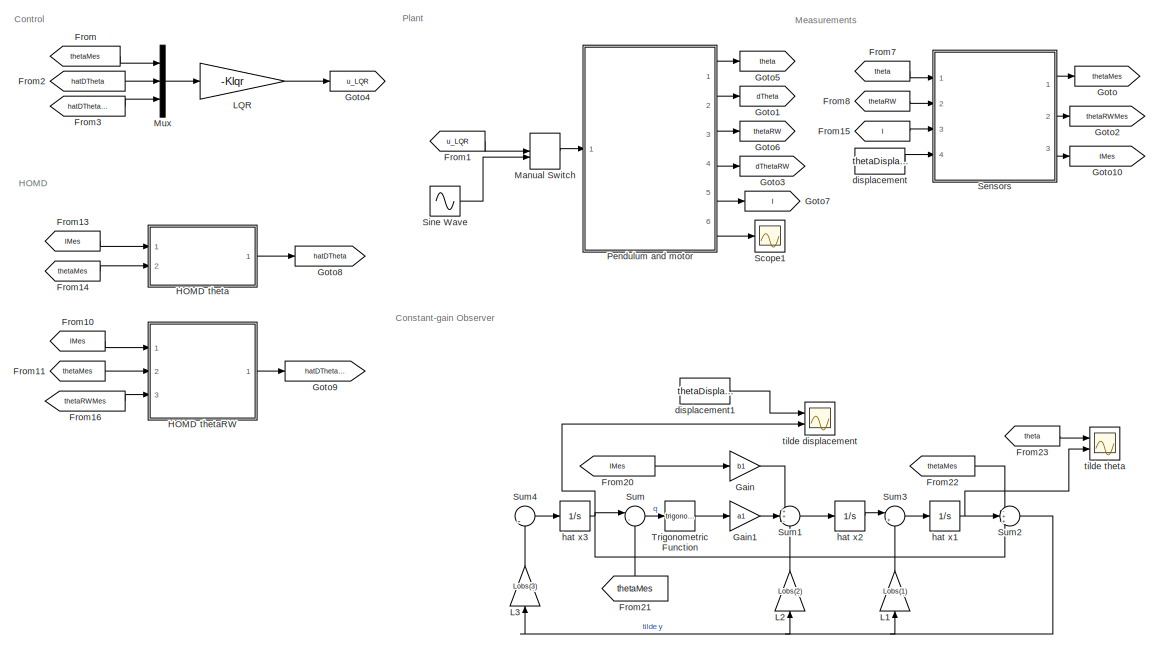
[diagram: root canvas - part 1/2, center side, full height]
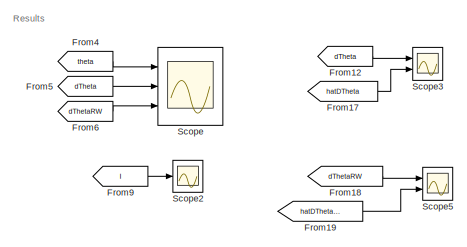
[diagram: root canvas - part 2/2, top right region]
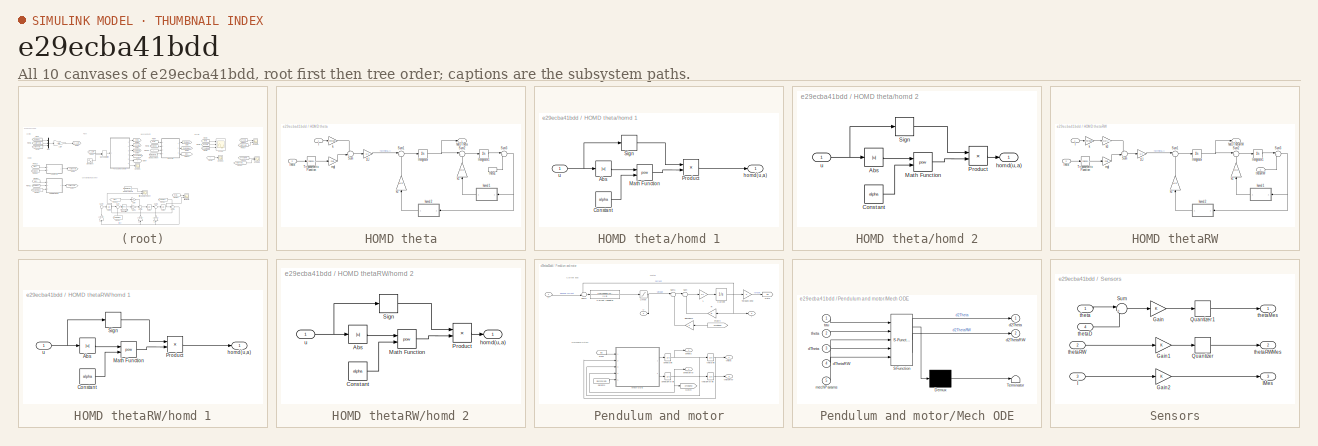
[diagram: thumbnail index - all 10 canvases of the model, root first then tree order]
MODEL slx_e29ecba41bdd
KIND model
CONFIG AbsTol = auto
CONFIG EnableMultiTasking = off
CONFIG FixedStep = auto
CONFIG MaxStep = 0.001
CONFIG MinStep = auto
CONFIG RelTol = 1e-6
CONFIG SampleTimeConstraint = Unconstrained
CONFIG Solver = VariableStepAuto
CONFIG SolverName = VariableStepAuto
CONFIG StartTime = 0.0
CONFIG StopTime = 5
BLOCK [From] From
  GotoTag = thetaMes
BLOCK [From] From1
  GotoTag = u_LQR
BLOCK [From] From10
  GotoTag = IMes
BLOCK [From] From11
  GotoTag = thetaMes
BLOCK [From] From12
  GotoTag = dTheta
BLOCK [From] From13
  GotoTag = IMes
BLOCK [From] From14
  GotoTag = thetaMes
BLOCK [From] From15
  GotoTag = I
BLOCK [From] From16
  GotoTag = thetaRWMes
BLOCK [From] From17
  GotoTag = hatDTheta
BLOCK [From] From18
  GotoTag = dThetaRW
BLOCK [From] From19
  GotoTag = hatDThetaRW
BLOCK [From] From2
  GotoTag = hatDTheta
BLOCK [From] From20
  GotoTag = IMes
BLOCK [From] From21
  GotoTag = thetaMes
BLOCK [From] From22
  GotoTag = thetaMes
BLOCK [From] From23
  GotoTag = theta
BLOCK [From] From3
  GotoTag = hatDThetaRW
BLOCK [From] From4
  GotoTag = theta
BLOCK [From] From5
  GotoTag = dTheta
BLOCK [From] From6
  GotoTag = dThetaRW
BLOCK [From] From7
  GotoTag = theta
BLOCK [From] From8
  GotoTag = thetaRW
BLOCK [From] From9
  GotoTag = I
BLOCK [Gain] Gain
  Gain = b1
  OutDataTypeStr = Inherit: Inherit via internal rule
  ParamDataTypeStr = Inherit: Inherit via internal rule
  SaturateOnIntegerOverflow = off
BLOCK [Gain] Gain1
  Gain = a1
  OutDataTypeStr = Inherit: Inherit via internal rule
  ParamDataTypeStr = Inherit: Inherit via internal rule
  SaturateOnIntegerOverflow = off
BLOCK [Goto] Goto
  GotoTag = thetaMes
BLOCK [Goto] Goto1
  GotoTag = dTheta
BLOCK [Goto] Goto10
  GotoTag = IMes
BLOCK [Goto] Goto2
  GotoTag = thetaRWMes
BLOCK [Goto] Goto3
  GotoTag = dThetaRW
BLOCK [Goto] Goto4
  GotoTag = u_LQR
BLOCK [Goto] Goto5
  GotoTag = theta
BLOCK [Goto] Goto6
  GotoTag = thetaRW
BLOCK [Goto] Goto7
  GotoTag = I
BLOCK [Goto] Goto8
  GotoTag = hatDTheta
BLOCK [Goto] Goto9
  GotoTag = hatDThetaRW
BLOCK [SubSystem] HOMD theta
  Ports = [2, 1]
  RequestExecContextInheritance = off
  Variant = off
BLOCK [Gain] HOMD theta/1//J
  Gain = 1/J
  OutDataTypeStr = Inherit: Inherit via internal rule
  ParamDataTypeStr = Inherit: Inherit via internal rule
  SaturateOnIntegerOverflow = off
BLOCK [Inport] HOMD theta/I
  IconDisplay = Port number
BLOCK [Integrator] HOMD theta/Integrator
  InitialCondition = x0(2)
  Ports = [1, 1]
BLOCK [Integrator] HOMD theta/Integrator1
  InitialCondition = x0(1)
  Ports = [1, 1]
BLOCK [Sum] HOMD theta/Sum
  IconShape = round
  InputSameDT = off
  Inputs = -+
  OutDataTypeStr = Inherit: Inherit via internal rule
  Ports = [2, 1]
  SaturateOnIntegerOverflow = off
BLOCK [Sum] HOMD theta/Sum1
  IconShape = round
  InputSameDT = off
  Inputs = |+-
  OutDataTypeStr = Inherit: Inherit via internal rule
  Ports = [2, 1]
  SaturateOnIntegerOverflow = off
BLOCK [Sum] HOMD theta/Sum2
  IconShape = round
  InputSameDT = off
  Inputs = |+-
  OutDataTypeStr = Inherit: Inherit via internal rule
  Ports = [2, 1]
  SaturateOnIntegerOverflow = off
BLOCK [Sum] HOMD theta/Sum3
  IconShape = round
  InputSameDT = off
  Inputs = |+-
  OutDataTypeStr = Inherit: Inherit via internal rule
  Ports = [2, 1]
  SaturateOnIntegerOverflow = off
BLOCK [Trigonometry] HOMD theta/Trigonometric Function
  Ports = [1, 1]
BLOCK [Outport] HOMD theta/hatDTheta
  IconDisplay = Port number
BLOCK [SubSystem] HOMD theta/homd 1
  Ports = [1, 1]
  RequestExecContextInheritance = off
  Variant = off
BLOCK [Abs] HOMD theta/homd 1/Abs
  SaturateOnIntegerOverflow = off
BLOCK [Constant] HOMD theta/homd 1/Constant
  Value = alpha
BLOCK [Math] HOMD theta/homd 1/Math Function
  Operator = pow
  Ports = [2, 1]
BLOCK [Product] HOMD theta/homd 1/Product
  InputSameDT = off
  OutDataTypeStr = Inherit: Inherit via internal rule
  Ports = [2, 1]
  RndMeth = Floor
  SaturateOnIntegerOverflow = off
BLOCK [Signum] HOMD theta/homd 1/Sign
BLOCK [Outport] HOMD theta/homd 1/homd(u,a)
  IconDisplay = Port number
BLOCK [Inport] HOMD theta/homd 1/u
  IconDisplay = Port number
BLOCK [SubSystem] HOMD theta/homd 2
  Ports = [1, 1]
  RequestExecContextInheritance = off
  Variant = off
BLOCK [Abs] HOMD theta/homd 2/Abs
  SaturateOnIntegerOverflow = off
BLOCK [Constant] HOMD theta/homd 2/Constant
  Value = alpha
BLOCK [Math] HOMD theta/homd 2/Math Function
  Operator = pow
  Ports = [2, 1]
BLOCK [Product] HOMD theta/homd 2/Product
  InputSameDT = off
  OutDataTypeStr = Inherit: Inherit via internal rule
  Ports = [2, 1]
  RndMeth = Floor
  SaturateOnIntegerOverflow = off
BLOCK [Signum] HOMD theta/homd 2/Sign
BLOCK [Outport] HOMD theta/homd 2/homd(u,a)
  IconDisplay = Port number
BLOCK [Inport] HOMD theta/homd 2/u
  IconDisplay = Port number
BLOCK [Gain] HOMD theta/k
  Gain = kTorque
  OutDataTypeStr = Inherit: Inherit via internal rule
  ParamDataTypeStr = Inherit: Inherit via internal rule
  SaturateOnIntegerOverflow = off
BLOCK [Gain] HOMD theta/k1
  Gain = k(1)
  OutDataTypeStr = Inherit: Inherit via internal rule
  ParamDataTypeStr = Inherit: Inherit via internal rule
  SaturateOnIntegerOverflow = off
BLOCK [Gain] HOMD theta/k2
  Gain = k(2)
  OutDataTypeStr = Inherit: Inherit via internal rule
  ParamDataTypeStr = Inherit: Inherit via internal rule
  SaturateOnIntegerOverflow = off
BLOCK [Gain] HOMD theta/mgl
  Gain = mlg
  OutDataTypeStr = Inherit: Inherit via internal rule
  ParamDataTypeStr = Inherit: Inherit via internal rule
  SaturateOnIntegerOverflow = off
BLOCK [Inport] HOMD theta/theta
  IconDisplay = Port number
  Port = 2
BLOCK [InportShadow] HOMD theta/theta1
  IconDisplay = Port number
  Port = 2
BLOCK [SubSystem] HOMD thetaRW
  Ports = [3, 1]
  RequestExecContextInheritance = off
  Variant = off
BLOCK [Gain] HOMD thetaRW/1//J
  Gain = 1/J
  OutDataTypeStr = Inherit: Inherit via internal rule
  ParamDataTypeStr = Inherit: Inherit via internal rule
  SaturateOnIntegerOverflow = off
BLOCK [Inport] HOMD thetaRW/I
  IconDisplay = Port number
BLOCK [Integrator] HOMD thetaRW/Integrator
  InitialCondition = x0(2)
  Ports = [1, 1]
BLOCK [Integrator] HOMD thetaRW/Integrator1
  InitialCondition = x0(1)
  Ports = [1, 1]
BLOCK [Sum] HOMD thetaRW/Sum
  IconShape = round
  InputSameDT = off
  Inputs = +-
  OutDataTypeStr = Inherit: Inherit via internal rule
  Ports = [2, 1]
  SaturateOnIntegerOverflow = off
BLOCK [Sum] HOMD thetaRW/Sum1
  IconShape = round
  InputSameDT = off
  Inputs = |+-
  OutDataTypeStr = Inherit: Inherit via internal rule
  Ports = [2, 1]
  SaturateOnIntegerOverflow = off
BLOCK [Sum] HOMD thetaRW/Sum2
  IconShape = round
  InputSameDT = off
  Inputs = |+-
  OutDataTypeStr = Inherit: Inherit via internal rule
  Ports = [2, 1]
  SaturateOnIntegerOverflow = off
BLOCK [Sum] HOMD thetaRW/Sum3
  IconShape = round
  InputSameDT = off
  Inputs = |+-
  OutDataTypeStr = Inherit: Inherit via internal rule
  Ports = [2, 1]
  SaturateOnIntegerOverflow = off
BLOCK [Trigonometry] HOMD thetaRW/Trigonometric Function
  Ports = [1, 1]
BLOCK [Outport] HOMD thetaRW/hatDThetaRW
  IconDisplay = Port number
BLOCK [SubSystem] HOMD thetaRW/homd 1
  Ports = [1, 1]
  RequestExecContextInheritance = off
  Variant = off
BLOCK [Abs] HOMD thetaRW/homd 1/Abs
  SaturateOnIntegerOverflow = off
BLOCK [Constant] HOMD thetaRW/homd 1/Constant
  Value = alpha
BLOCK [Math] HOMD thetaRW/homd 1/Math Function
  Operator = pow
  Ports = [2, 1]
BLOCK [Product] HOMD thetaRW/homd 1/Product
  InputSameDT = off
  OutDataTypeStr = Inherit: Inherit via internal rule
  Ports = [2, 1]
  RndMeth = Floor
  SaturateOnIntegerOverflow = off
BLOCK [Signum] HOMD thetaRW/homd 1/Sign
BLOCK [Outport] HOMD thetaRW/homd 1/homd(u,a)
  IconDisplay = Port number
BLOCK [Inport] HOMD thetaRW/homd 1/u
  IconDisplay = Port number
BLOCK [SubSystem] HOMD thetaRW/homd 2
  Ports = [1, 1]
  RequestExecContextInheritance = off
  Variant = off
BLOCK [Abs] HOMD thetaRW/homd 2/Abs
  SaturateOnIntegerOverflow = off
BLOCK [Constant] HOMD thetaRW/homd 2/Constant
  Value = alpha
BLOCK [Math] HOMD thetaRW/homd 2/Math Function
  Operator = pow
  Ports = [2, 1]
BLOCK [Product] HOMD thetaRW/homd 2/Product
  InputSameDT = off
  OutDataTypeStr = Inherit: Inherit via internal rule
  Ports = [2, 1]
  RndMeth = Floor
  SaturateOnIntegerOverflow = off
BLOCK [Signum] HOMD thetaRW/homd 2/Sign
BLOCK [Outport] HOMD thetaRW/homd 2/homd(u,a)
  IconDisplay = Port number
BLOCK [Inport] HOMD thetaRW/homd 2/u
  IconDisplay = Port number
BLOCK [Gain] HOMD thetaRW/k
  Gain = kTorque
  OutDataTypeStr = Inherit: Inherit via internal rule
  ParamDataTypeStr = Inherit: Inherit via internal rule
  SaturateOnIntegerOverflow = off
BLOCK [Gain] HOMD thetaRW/k1
  Gain = k(1)
  OutDataTypeStr = Inherit: Inherit via internal rule
  ParamDataTypeStr = Inherit: Inherit via internal rule
  SaturateOnIntegerOverflow = off
BLOCK [Gain] HOMD thetaRW/k2
  Gain = k(2)
  OutDataTypeStr = Inherit: Inherit via internal rule
  ParamDataTypeStr = Inherit: Inherit via internal rule
  SaturateOnIntegerOverflow = off
BLOCK [Gain] HOMD thetaRW/k3
  Gain = (J+Jr)/Jr
  OutDataTypeStr = Inherit: Inherit via internal rule
  ParamDataTypeStr = Inherit: Inherit via internal rule
  SaturateOnIntegerOverflow = off
BLOCK [Gain] HOMD thetaRW/mgl
  Gain = mlg
  OutDataTypeStr = Inherit: Inherit via internal rule
  ParamDataTypeStr = Inherit: Inherit via internal rule
  SaturateOnIntegerOverflow = off
BLOCK [Inport] HOMD thetaRW/theta
  IconDisplay = Port number
  Port = 2
BLOCK [Inport] HOMD thetaRW/thetaRW
  IconDisplay = Port number
  Port = 3
BLOCK [Gain] L1
  Gain = Lobs(1)
  OutDataTypeStr = Inherit: Inherit via internal rule
  ParamDataTypeStr = Inherit: Inherit via internal rule
  SaturateOnIntegerOverflow = off
BLOCK [Gain] L2
  Gain = Lobs(2)
  OutDataTypeStr = Inherit: Inherit via internal rule
  ParamDataTypeStr = Inherit: Inherit via internal rule
  SaturateOnIntegerOverflow = off
BLOCK [Gain] L3
  Gain = Lobs(3)
  OutDataTypeStr = Inherit: Inherit via internal rule
  ParamDataTypeStr = Inherit: Inherit via internal rule
  SaturateOnIntegerOverflow = off
BLOCK [Gain] LQR
  Gain = -Klqr
  Multiplication = Matrix(K*u)
  OutDataTypeStr = Inherit: Inherit via internal rule
  ParamDataTypeStr = Inherit: Inherit via internal rule
  SaturateOnIntegerOverflow = off
BLOCK [ManualSwitch] Manual Switch
BLOCK [Mux] Mux
  DisplayOption = bar
  Inputs = 3
  Ports = [3, 1]
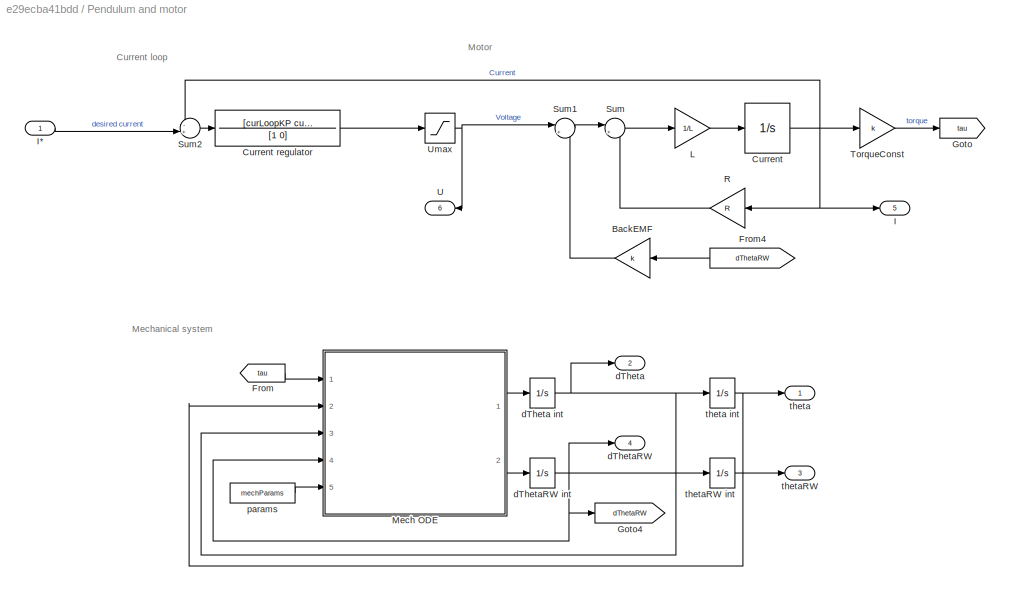
BLOCK [SubSystem] Pendulum and motor
  Ports = [1, 6]
  RequestExecContextInheritance = off
  Variant = off
BLOCK [Gain] Pendulum and motor/BackEMF
  Gain = k
  OutDataTypeStr = Inherit: Inherit via internal rule
  ParamDataTypeStr = Inherit: Inherit via internal rule
  SaturateOnIntegerOverflow = off
BLOCK [Integrator] Pendulum and motor/Current
  Ports = [1, 1]
BLOCK [TransferFcn] Pendulum and motor/Current regulator
  Denominator = [1 0]
  Numerator = [curLoopKP curLoopKI]
BLOCK [From] Pendulum and motor/From
  GotoTag = tau
BLOCK [From] Pendulum and motor/From4
  GotoTag = dThetaRW
BLOCK [Goto] Pendulum and motor/Goto
  GotoTag = tau
BLOCK [Goto] Pendulum and motor/Goto4
  GotoTag = dThetaRW
BLOCK [Outport] Pendulum and motor/I
  IconDisplay = Port number
  Port = 5
BLOCK [Inport] Pendulum and motor/I*
  IconDisplay = Port number
BLOCK [Gain] Pendulum and motor/L
  Gain = 1/L
  OutDataTypeStr = Inherit: Inherit via internal rule
  ParamDataTypeStr = Inherit: Inherit via internal rule
  SaturateOnIntegerOverflow = off
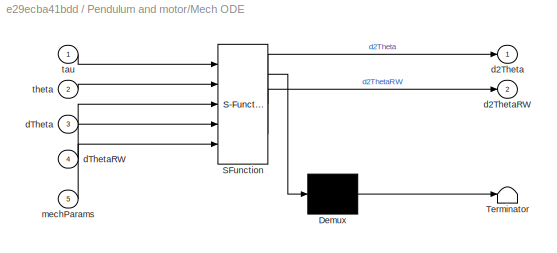
BLOCK [SubSystem] Pendulum and motor/Mech ODE
  ErrorFcn = Stateflow.Translate.translate
  PermitHierarchicalResolution = ExplicitOnly
  Ports = [5, 2]
  RequestExecContextInheritance = off
  SFBlockType = MATLAB Function
  TreatAsAtomicUnit = on
  Variant = off
BLOCK [Demux] Pendulum and motor/Mech ODE/ Demux 
  Outputs = 1
  Ports = [1, 1]
BLOCK [S-Function] Pendulum and motor/Mech ODE/ SFunction 
  EnableBusSupport = on
  FunctionName = sf_sfun
  PortCounts = [5 3]
  Ports = [5, 3]
  SFcnIsStateOwnerBlock = off
  SFunctionDeploymentMode = off
  Tag = Stateflow S-Function DisplacementObserver_basicModel 2
BLOCK [Terminator] Pendulum and motor/Mech ODE/ Terminator 
BLOCK [Outport] Pendulum and motor/Mech ODE/d2Theta
  IconDisplay = Port number
BLOCK [Outport] Pendulum and motor/Mech ODE/d2ThetaRW
  IconDisplay = Port number
  Port = 2
BLOCK [Inport] Pendulum and motor/Mech ODE/dTheta
  IconDisplay = Port number
  Port = 3
BLOCK [Inport] Pendulum and motor/Mech ODE/dThetaRW
  IconDisplay = Port number
  Port = 4
BLOCK [Inport] Pendulum and motor/Mech ODE/mechParams
  IconDisplay = Port number
  Port = 5
BLOCK [Inport] Pendulum and motor/Mech ODE/tau
  IconDisplay = Port number
BLOCK [Inport] Pendulum and motor/Mech ODE/theta
  IconDisplay = Port number
  Port = 2
BLOCK [Gain] Pendulum and motor/R
  Gain = R
  OutDataTypeStr = Inherit: Inherit via internal rule
  ParamDataTypeStr = Inherit: Inherit via internal rule
  SaturateOnIntegerOverflow = off
BLOCK [Sum] Pendulum and motor/Sum
  IconShape = round
  InputSameDT = off
  Inputs = |+-
  OutDataTypeStr = Inherit: Inherit via internal rule
  Ports = [2, 1]
  SaturateOnIntegerOverflow = off
BLOCK [Sum] Pendulum and motor/Sum1
  IconShape = round
  InputSameDT = off
  Inputs = |+-
  OutDataTypeStr = Inherit: Inherit via internal rule
  Ports = [2, 1]
  SaturateOnIntegerOverflow = off
BLOCK [Sum] Pendulum and motor/Sum2
  IconShape = round
  InputSameDT = off
  Inputs = -+|
  OutDataTypeStr = Inherit: Inherit via internal rule
  Ports = [2, 1]
  SaturateOnIntegerOverflow = off
BLOCK [Gain] Pendulum and motor/TorqueConst
  Gain = k
  OutDataTypeStr = Inherit: Inherit via internal rule
  ParamDataTypeStr = Inherit: Inherit via internal rule
  SaturateOnIntegerOverflow = off
BLOCK [Outport] Pendulum and motor/U
  IconDisplay = Port number
  Port = 6
BLOCK [Saturate] Pendulum and motor/Umax
  InputPortMap = u0
  LowerLimit = -Umax
  Ports = [1, 1]
  UpperLimit = Umax
BLOCK [Outport] Pendulum and motor/dTheta
  IconDisplay = Port number
  Port = 2
BLOCK [Integrator] Pendulum and motor/dTheta int
  InitialCondition = dTheta0
  Ports = [1, 1]
BLOCK [Outport] Pendulum and motor/dThetaRW
  IconDisplay = Port number
  Port = 4
BLOCK [Integrator] Pendulum and motor/dThetaRW int
  InitialCondition = dThetaRW0
  Ports = [1, 1]
BLOCK [Constant] Pendulum and motor/params
  Value = mechParams
BLOCK [Outport] Pendulum and motor/theta
  IconDisplay = Port number
BLOCK [Integrator] Pendulum and motor/theta int
  InitialCondition = theta0
  Ports = [1, 1]
BLOCK [Outport] Pendulum and motor/thetaRW
  IconDisplay = Port number
  Port = 3
BLOCK [Integrator] Pendulum and motor/thetaRW int
  InitialCondition = thetaRW0
  Ports = [1, 1]
BLOCK [Scope] Scope
  NumInputPorts = 3
  Ports = [3]
  ScopeSpecificationString = Simulink.scopes.TimeScopeBlockCfg('CurrentConfiguration', extmgr.ConfigurationSet(extmgr.Configuration('Core','General UI',true),extmgr.Configuration('Core','Source UI',true),extmgr.Configuration('Sources','WiredSimulink',true),extmgr.Configuration('Visuals','Time Domain',true,'SerializedDisplays',{struct('MinYLimReal','-0.23517','MaxYLimReal','0.02652','YLabelReal','','MinYLimMag','0.00000','MaxY...<+2703ch>
BLOCK [Scope] Scope1
  NumInputPorts = 1
  Ports = [1]
  ScopeSpecificationString = Simulink.scopes.TimeScopeBlockCfg('CurrentConfiguration', extmgr.ConfigurationSet(extmgr.Configuration('Core','General UI',true),extmgr.Configuration('Core','Source UI',true),extmgr.Configuration('Sources','WiredSimulink',true,'DataLoggingVariableName','ScopeData1','DataLoggingSaveFormat','Array','DataLoggingDecimation','1','DataLoggingDecimateData',true),extmgr.Configuration('Visuals','Time Domai...<+1507ch>
BLOCK [Scope] Scope2
  NumInputPorts = 1
  Ports = [1]
  ScopeSpecificationString = Simulink.scopes.TimeScopeBlockCfg('CurrentConfiguration', extmgr.ConfigurationSet(extmgr.Configuration('Core','General UI',true),extmgr.Configuration('Core','Source UI',true),extmgr.Configuration('Sources','WiredSimulink',true,'DataLoggingVariableName','ScopeData2'),extmgr.Configuration('Visuals','Time Domain',true,'SerializedDisplays',{struct('MinYLimReal','-43.04906','MaxYLimReal','10.98979','YL...<+1419ch>
BLOCK [Scope] Scope3
  NumInputPorts = 2
  Ports = [2]
  ScopeSpecificationString = Simulink.scopes.TimeScopeBlockCfg('CurrentConfiguration', extmgr.ConfigurationSet(extmgr.Configuration('Core','General UI',true),extmgr.Configuration('Core','Source UI',true),extmgr.Configuration('Sources','WiredSimulink',true,'DataLoggingVariableName','ScopeData2'),extmgr.Configuration('Visuals','Time Domain',true,'SerializedDisplays',{struct('MinYLimReal','-0.97532','MaxYLimReal','1.21948','YLab...<+1444ch>
BLOCK [Scope] Scope5
  NumInputPorts = 2
  Ports = [2]
  ScopeSpecificationString = Simulink.scopes.TimeScopeBlockCfg('CurrentConfiguration', extmgr.ConfigurationSet(extmgr.Configuration('Core','General UI',true),extmgr.Configuration('Core','Source UI',true),extmgr.Configuration('Sources','WiredSimulink',true,'DataLoggingVariableName','ScopeData5'),extmgr.Configuration('Visuals','Time Domain',true,'SerializedDisplays',{struct('MinYLimReal','-400.89794','MaxYLimReal','239.69237','...<+1460ch>
BLOCK [SubSystem] Sensors
  Ports = [4, 3]
  RequestExecContextInheritance = off
  Variant = off
BLOCK [Gain] Sensors/Gain
  OutDataTypeStr = Inherit: Inherit via internal rule
  ParamDataTypeStr = Inherit: Inherit via internal rule
  SaturateOnIntegerOverflow = off
BLOCK [Gain] Sensors/Gain1
  OutDataTypeStr = Inherit: Inherit via internal rule
  ParamDataTypeStr = Inherit: Inherit via internal rule
  SaturateOnIntegerOverflow = off
BLOCK [Gain] Sensors/Gain2
  OutDataTypeStr = Inherit: Inherit via internal rule
  ParamDataTypeStr = Inherit: Inherit via internal rule
  SaturateOnIntegerOverflow = off
BLOCK [Inport] Sensors/I
  IconDisplay = Port number
  Port = 3
BLOCK [Outport] Sensors/IMes
  IconDisplay = Port number
  Port = 3
BLOCK [Quantizer] Sensors/Quantizer
  QuantizationInterval = 2*pi/48
BLOCK [Quantizer] Sensors/Quantizer1
  QuantizationInterval = 2*pi/10000
BLOCK [Sum] Sensors/Sum
  IconShape = round
  InputSameDT = off
  Inputs = |++
  OutDataTypeStr = Inherit: Inherit via internal rule
  Ports = [2, 1]
  SaturateOnIntegerOverflow = off
BLOCK [Inport] Sensors/theta
  IconDisplay = Port number
BLOCK [Inport] Sensors/thetaD
  IconDisplay = Port number
  Port = 4
BLOCK [Outport] Sensors/thetaMes
  IconDisplay = Port number
BLOCK [Inport] Sensors/thetaRW
  IconDisplay = Port number
  Port = 2
BLOCK [Outport] Sensors/thetaRWMes
  IconDisplay = Port number
  Port = 2
BLOCK [Sin] Sine Wave
  Frequency = 3
  Ports = [0, 1]
  SampleTime = 0
BLOCK [Sum] Sum
  IconShape = round
  InputSameDT = off
  Inputs = |-+
  OutDataTypeStr = Inherit: Inherit via internal rule
  Ports = [2, 1]
  SaturateOnIntegerOverflow = off
BLOCK [Sum] Sum1
  IconShape = round
  InputSameDT = off
  Inputs = ++-
  OutDataTypeStr = Inherit: Inherit via internal rule
  Ports = [3, 1]
  SaturateOnIntegerOverflow = off
BLOCK [Sum] Sum2
  IconShape = round
  InputSameDT = off
  Inputs = -++
  OutDataTypeStr = Inherit: Inherit via internal rule
  Ports = [3, 1]
  SaturateOnIntegerOverflow = off
BLOCK [Sum] Sum3
  IconShape = round
  InputSameDT = off
  Inputs = |+-
  OutDataTypeStr = Inherit: Inherit via internal rule
  Ports = [2, 1]
  SaturateOnIntegerOverflow = off
BLOCK [Sum] Sum4
  IconShape = round
  InputSameDT = off
  Inputs = ||-
  OutDataTypeStr = Inherit: Inherit via internal rule
  Ports = [1, 1]
  SaturateOnIntegerOverflow = off
BLOCK [Trigonometry] Trigonometric Function
  Ports = [1, 1]
BLOCK [Constant] displacement
  Value = thetaDisplacement
BLOCK [Constant] displacement1
  Value = thetaDisplacement
BLOCK [Integrator] hat x1
  Ports = [1, 1]
BLOCK [Integrator] hat x2
  Ports = [1, 1]
BLOCK [Integrator] hat x3
  LimitOutput = on
  LowerSaturationLimit = -0.5
  Ports = [1, 1]
  UpperSaturationLimit = 0.5
BLOCK [Scope] tilde displacement
  NumInputPorts = 2
  Ports = [2]
  ScopeSpecificationString = Simulink.scopes.TimeScopeBlockCfg('CurrentConfiguration', extmgr.ConfigurationSet(extmgr.Configuration('Core','General UI',true),extmgr.Configuration('Core','Source UI',true),extmgr.Configuration('Sources','WiredSimulink',true,'DataLoggingVariableName','ScopeData1'),extmgr.Configuration('Visuals','Time Domain',true,'SerializedDisplays',{struct('MinYLimReal','-0.43825','MaxYLimReal','0.18681','YLab...<+1433ch>
BLOCK [Scope] tilde theta
  NumInputPorts = 2
  Ports = [2]
  ScopeSpecificationString = Simulink.scopes.TimeScopeBlockCfg('CurrentConfiguration', extmgr.ConfigurationSet(extmgr.Configuration('Core','General UI',true),extmgr.Configuration('Core','Source UI',true),extmgr.Configuration('Sources','WiredSimulink',true,'DataLoggingVariableName','ScopeData2'),extmgr.Configuration('Visuals','Time Domain',true,'SerializedDisplays',{struct('MinYLimReal','-0.29176','MaxYLimReal','0.51577','YLab...<+1440ch>
ANNOTATION (root): Constant-gain Observer
ANNOTATION (root): Control
ANNOTATION (root): HOMD
ANNOTATION (root): Measurements
ANNOTATION (root): Plant
ANNOTATION (root): Results
ANNOTATION Pendulum and motor: Current loop
ANNOTATION Pendulum and motor: Mechanical system
ANNOTATION Pendulum and motor: Motor
LINE From10:1 -> HOMD thetaRW:1
LINE From11:1 -> HOMD thetaRW:2
LINE From12:1 -> Scope3:1
LINE From13:1 -> HOMD theta:1
LINE From14:1 -> HOMD theta:2
LINE From15:1 -> Sensors:3
LINE From16:1 -> HOMD thetaRW:3
LINE From17:1 -> Scope3:2
LINE From18:1 -> Scope5:1
LINE From19:1 -> Scope5:2
LINE From1:1 -> Manual Switch:1
LINE From20:1 -> Gain:1
LINE From21:1 -> Sum:2
LINE From22:1 -> Sum2:1
LINE From23:1 -> tilde theta:1
LINE From2:1 -> Mux:2
LINE From3:1 -> Mux:3
LINE From4:1 -> Scope:1
LINE From5:1 -> Scope:2
LINE From6:1 -> Scope:3
LINE From7:1 -> Sensors:1
LINE From8:1 -> Sensors:2
LINE From9:1 -> Scope2:1
LINE From:1 -> Mux:1
LINE Gain1:1 -> Sum1:2
LINE Gain:1 -> Sum1:1
LINE HOMD theta/1//J:1 -> HOMD theta/Sum1:1
LINE HOMD theta/I:1 -> HOMD theta/k:1
LINE HOMD theta/Integrator1:1 -> HOMD theta/Sum3:1
NET HOMD theta/Integrator:1 -> HOMD theta/Sum2:1, HOMD theta/hatDTheta:1
LINE HOMD theta/Sum1:1 -> HOMD theta/Integrator:1
LINE HOMD theta/Sum2:1 -> HOMD theta/Integrator1:1
NET HOMD theta/Sum3:1 -> HOMD theta/homd 1:1, HOMD theta/homd 2:1
LINE HOMD theta/Sum:1 -> HOMD theta/1//J:1
LINE HOMD theta/Trigonometric Function:1 -> HOMD theta/mgl:1
LINE HOMD theta/homd 1/Abs:1 -> HOMD theta/homd 1/Math Function:1
LINE HOMD theta/homd 1/Constant:1 -> HOMD theta/homd 1/Math Function:2
LINE HOMD theta/homd 1/Math Function:1 -> HOMD theta/homd 1/Product:2
LINE HOMD theta/homd 1/Product:1 -> HOMD theta/homd 1/homd(u,a):1
LINE HOMD theta/homd 1/Sign:1 -> HOMD theta/homd 1/Product:1
NET HOMD theta/homd 1/u:1 -> HOMD theta/homd 1/Abs:1, HOMD theta/homd 1/Sign:1
LINE HOMD theta/homd 1:1 -> HOMD theta/k1:1
LINE HOMD theta/homd 2/Abs:1 -> HOMD theta/homd 2/Math Function:1
LINE HOMD theta/homd 2/Constant:1 -> HOMD theta/homd 2/Math Function:2
LINE HOMD theta/homd 2/Math Function:1 -> HOMD theta/homd 2/Product:2
LINE HOMD theta/homd 2/Product:1 -> HOMD theta/homd 2/homd(u,a):1
LINE HOMD theta/homd 2/Sign:1 -> HOMD theta/homd 2/Product:1
NET HOMD theta/homd 2/u:1 -> HOMD theta/homd 2/Abs:1, HOMD theta/homd 2/Sign:1
LINE HOMD theta/homd 2:1 -> HOMD theta/k2:1
LINE HOMD theta/k1:1 -> HOMD theta/Sum2:2
LINE HOMD theta/k2:1 -> HOMD theta/Sum1:2
LINE HOMD theta/k:1 -> HOMD theta/Sum:1
LINE HOMD theta/mgl:1 -> HOMD theta/Sum:2
LINE HOMD theta/theta1:1 -> HOMD theta/Sum3:2
LINE HOMD theta/theta:1 -> HOMD theta/Trigonometric Function:1
LINE HOMD theta:1 -> Goto8:1
LINE HOMD thetaRW/1//J:1 -> HOMD thetaRW/Sum1:1
LINE HOMD thetaRW/I:1 -> HOMD thetaRW/k:1
LINE HOMD thetaRW/Integrator1:1 -> HOMD thetaRW/Sum3:1
NET HOMD thetaRW/Integrator:1 -> HOMD thetaRW/Sum2:1, HOMD thetaRW/hatDThetaRW:1
LINE HOMD thetaRW/Sum1:1 -> HOMD thetaRW/Integrator:1
LINE HOMD thetaRW/Sum2:1 -> HOMD thetaRW/Integrator1:1
NET HOMD thetaRW/Sum3:1 -> HOMD thetaRW/homd 1:1, HOMD thetaRW/homd 2:1
LINE HOMD thetaRW/Sum:1 -> HOMD thetaRW/1//J:1
LINE HOMD thetaRW/Trigonometric Function:1 -> HOMD thetaRW/mgl:1
LINE HOMD thetaRW/homd 1/Abs:1 -> HOMD thetaRW/homd 1/Math Function:1
LINE HOMD thetaRW/homd 1/Constant:1 -> HOMD thetaRW/homd 1/Math Function:2
LINE HOMD thetaRW/homd 1/Math Function:1 -> HOMD thetaRW/homd 1/Product:2
LINE HOMD thetaRW/homd 1/Product:1 -> HOMD thetaRW/homd 1/homd(u,a):1
LINE HOMD thetaRW/homd 1/Sign:1 -> HOMD thetaRW/homd 1/Product:1
NET HOMD thetaRW/homd 1/u:1 -> HOMD thetaRW/homd 1/Abs:1, HOMD thetaRW/homd 1/Sign:1
LINE HOMD thetaRW/homd 1:1 -> HOMD thetaRW/k1:1
LINE HOMD thetaRW/homd 2/Abs:1 -> HOMD thetaRW/homd 2/Math Function:1
LINE HOMD thetaRW/homd 2/Constant:1 -> HOMD thetaRW/homd 2/Math Function:2
LINE HOMD thetaRW/homd 2/Math Function:1 -> HOMD thetaRW/homd 2/Product:2
LINE HOMD thetaRW/homd 2/Product:1 -> HOMD thetaRW/homd 2/homd(u,a):1
LINE HOMD thetaRW/homd 2/Sign:1 -> HOMD thetaRW/homd 2/Product:1
NET HOMD thetaRW/homd 2/u:1 -> HOMD thetaRW/homd 2/Abs:1, HOMD thetaRW/homd 2/Sign:1
LINE HOMD thetaRW/homd 2:1 -> HOMD thetaRW/k2:1
LINE HOMD thetaRW/k1:1 -> HOMD thetaRW/Sum2:2
LINE HOMD thetaRW/k2:1 -> HOMD thetaRW/Sum1:2
LINE HOMD thetaRW/k3:1 -> HOMD thetaRW/Sum:1
LINE HOMD thetaRW/k:1 -> HOMD thetaRW/k3:1
LINE HOMD thetaRW/mgl:1 -> HOMD thetaRW/Sum:2
LINE HOMD thetaRW/theta:1 -> HOMD thetaRW/Trigonometric Function:1
LINE HOMD thetaRW/thetaRW:1 -> HOMD thetaRW/Sum3:2
LINE HOMD thetaRW:1 -> Goto9:1
LINE L1:1 -> Sum3:2
LINE L2:1 -> Sum1:3
LINE L3:1 -> Sum4:1
LINE LQR:1 -> Goto4:1
LINE Manual Switch:1 -> Pendulum and motor:1
LINE Mux:1 -> LQR:1
LINE Pendulum and motor/BackEMF:1 -> Pendulum and motor/Sum1:2
LINE Pendulum and motor/Current regulator:1 -> Pendulum and motor/Umax:1
NET Pendulum and motor/Current:1 -> Pendulum and motor/I:1, Pendulum and motor/R:1, Pendulum and motor/Sum2:1, Pendulum and motor/TorqueConst:1
LINE Pendulum and motor/From4:1 -> Pendulum and motor/BackEMF:1
LINE Pendulum and motor/From:1 -> Pendulum and motor/Mech ODE:1
LINE Pendulum and motor/I*:1 -> Pendulum and motor/Sum2:2
LINE Pendulum and motor/L:1 -> Pendulum and motor/Current:1
LINE Pendulum and motor/Mech ODE:1 -> Pendulum and motor/dTheta int:1
LINE Pendulum and motor/Mech ODE:2 -> Pendulum and motor/dThetaRW int:1
LINE Pendulum and motor/R:1 -> Pendulum and motor/Sum:2
LINE Pendulum and motor/Sum1:1 -> Pendulum and motor/Sum:1
LINE Pendulum and motor/Sum2:1 -> Pendulum and motor/Current regulator:1
LINE Pendulum and motor/Sum:1 -> Pendulum and motor/L:1
LINE Pendulum and motor/TorqueConst:1 -> Pendulum and motor/Goto:1
NET Pendulum and motor/Umax:1 -> Pendulum and motor/Sum1:1, Pendulum and motor/U:1
NET Pendulum and motor/dTheta int:1 -> Pendulum and motor/Mech ODE:3, Pendulum and motor/dTheta:1, Pendulum and motor/theta int:1
NET Pendulum and motor/dThetaRW int:1 -> Pendulum and motor/Goto4:1, Pendulum and motor/Mech ODE:4, Pendulum and motor/dThetaRW:1, Pendulum and motor/thetaRW int:1
LINE Pendulum and motor/params:1 -> Pendulum and motor/Mech ODE:5
NET Pendulum and motor/theta int:1 -> Pendulum and motor/Mech ODE:2, Pendulum and motor/theta:1
LINE Pendulum and motor/thetaRW int:1 -> Pendulum and motor/thetaRW:1
LINE Pendulum and motor:1 -> Goto5:1
LINE Pendulum and motor:2 -> Goto1:1
LINE Pendulum and motor:3 -> Goto6:1
LINE Pendulum and motor:4 -> Goto3:1
LINE Pendulum and motor:5 -> Goto7:1
LINE Pendulum and motor:6 -> Scope1:1
LINE Sensors/Gain1:1 -> Sensors/Quantizer:1
LINE Sensors/Gain2:1 -> Sensors/IMes:1
LINE Sensors/Gain:1 -> Sensors/Quantizer1:1
LINE Sensors/I:1 -> Sensors/Gain2:1
LINE Sensors/Quantizer1:1 -> Sensors/thetaMes:1
LINE Sensors/Quantizer:1 -> Sensors/thetaRWMes:1
LINE Sensors/Sum:1 -> Sensors/Gain:1
LINE Sensors/theta:1 -> Sensors/Sum:1
LINE Sensors/thetaD:1 -> Sensors/Sum:2
LINE Sensors/thetaRW:1 -> Sensors/Gain1:1
LINE Sensors:1 -> Goto:1
LINE Sensors:2 -> Goto2:1
LINE Sensors:3 -> Goto10:1
LINE Sine Wave:1 -> Manual Switch:2
LINE Sum1:1 -> hat x2:1
NET Sum2:1 -> L1:1, L2:1, L3:1
LINE Sum3:1 -> hat x1:1
LINE Sum4:1 -> hat x3:1
LINE Sum:1 -> Trigonometric Function:1
LINE Trigonometric Function:1 -> Gain1:1
LINE displacement1:1 -> tilde displacement:1
LINE displacement:1 -> Sensors:4
NET hat x1:1 -> Sum2:2, tilde theta:2
LINE hat x2:1 -> Sum3:1
NET hat x3:1 -> Sum2:3, Sum:1, tilde displacement:2
note: NET lines group one-source signal fan-out (src -> all destinations, sorted); 1:1 wires keep LINE
CHART Pendulum and motor/Mech ODE states=1 transitions=1
  STATE_LABEL 'eML_blk_kernel()'
  STATE_LABEL 'SCRIPT:\nfunction [d2Theta, d2ThetaRW] = RWPendODE(tau, theta, dTheta, dThetaRW, mechParams)\n%RWODE Compute the derivatives\n\n% The parameters are: J, Jr, Cp, Cr, R, k, Umax, mlg\n\nJ = mechParams(1);\nJr = mechParams(2);\nCp = mechParams(3);\nCr = mechParams(4);\nmlg = mechParams(5);\n\n% The model    \nM = [Jr Jr; Jr J+Jr];\nG = [0; -mlg*sin(theta)];\nT = [-Cr*dThetaRW+tau; -Cp*dTheta];\n\nd2q=M\\(-G+T);\n\nd2The...<+34ch>'
